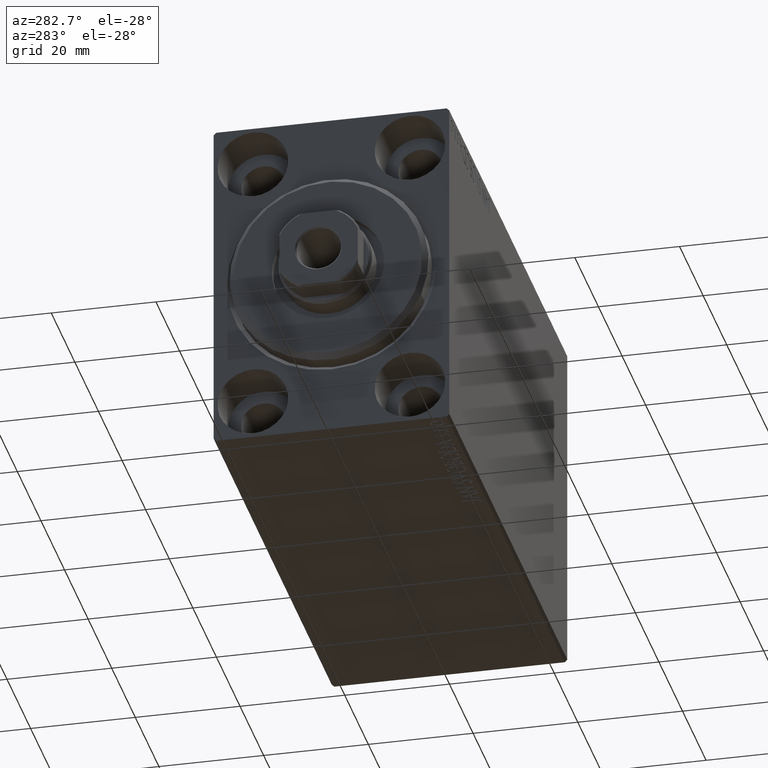
[diagram: clean part render]
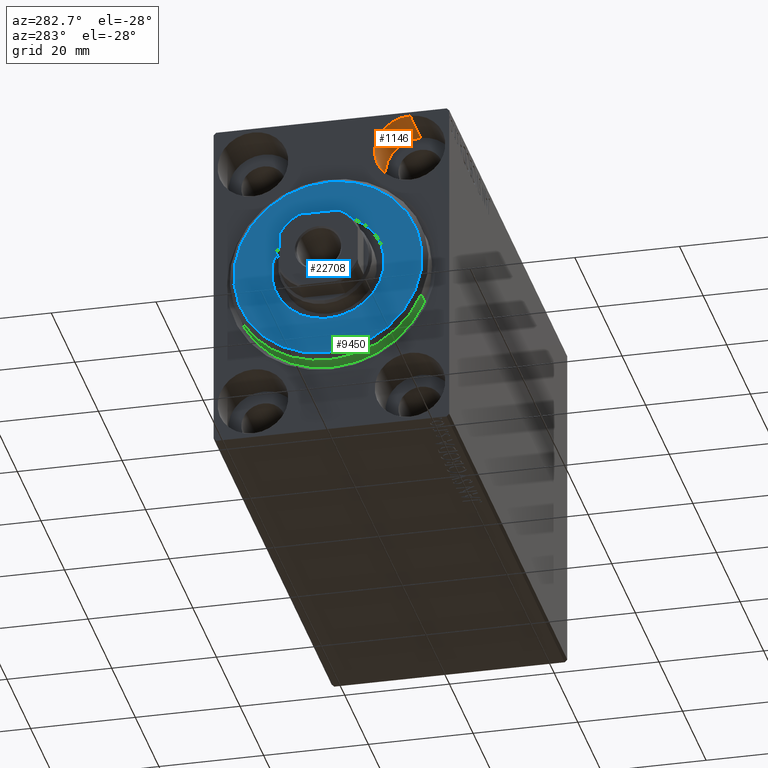
[diagram: same view with three faces highlighted in distinct colors, each labeled with its STEP entity id]
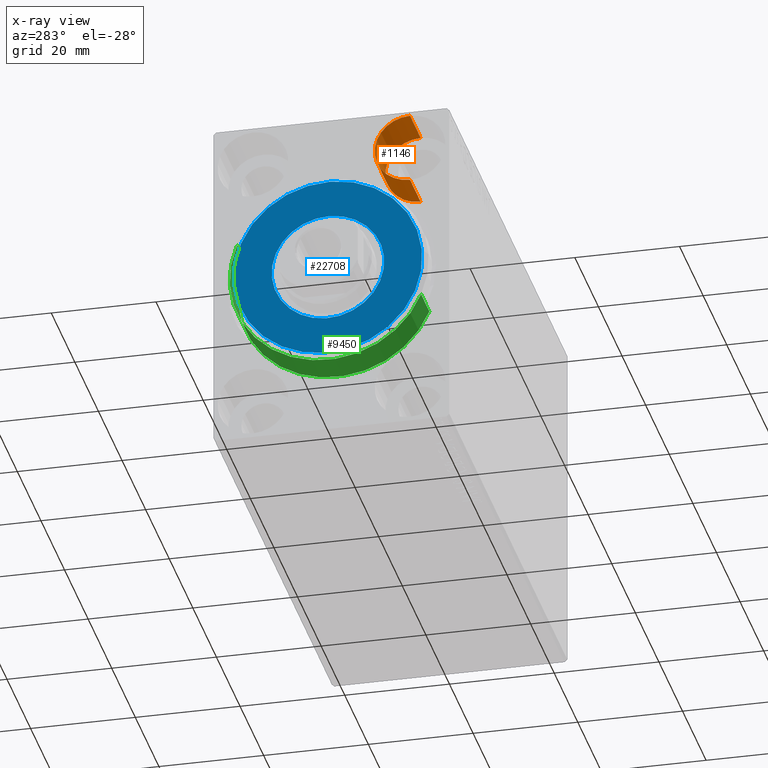
[diagram: x-ray of the same camera — body ghosted, the three highlighted faces saturated]
A machine part, auxiliary view with three faces highlighted in distinct colors.
The next image is the same camera in x-ray (body ghosted, the three faces saturated) — at least one of them is partly hidden behind the body in this view.
Their STEP definitions:

[orange] entity #1146 — the highlighted cylindrical surface (edge-blend (fillet) strip) has radius 6.75 mm, axis along (-1, -0, -0).
#38 = CARTESIAN_POINT ( 'NONE',  ( 9.000000000000000000, -14.99999999999999645, 25.00000000000000000 ) ) ;
#243 = CARTESIAN_POINT ( 'NONE',  ( 9.000000000000000000, -14.99999999999999645, 18.25000000000000355 ) ) ;
#1146 = ADVANCED_FACE ( 'NONE', ( #20602 ), #20383, .F. ) ;
#1150 = DIRECTION ( 'NONE',  ( -1.000000000000000000, 0.000000000000000000, 0.000000000000000000 ) ) ;
#2938 = VERTEX_POINT ( 'NONE', #243 ) ;
#3031 = CARTESIAN_POINT ( 'NONE',  ( 0.000000000000000000, -14.99999999999999645, 18.25000000000000355 ) ) ;
#5574 = EDGE_LOOP ( 'NONE', ( #6490, #9588, #26633, #31160 ) ) ;
#6264 = LINE ( 'NONE', #19780, #40324 ) ;
#6490 = ORIENTED_EDGE ( 'NONE', *, *, #9525, .F. ) ;
#8071 = CARTESIAN_POINT ( 'NONE',  ( 9.000000000000000000, -14.99999999999999645, 31.75000000000000000 ) ) ;
#9525 = EDGE_CURVE ( 'NONE', #2938, #22240, #32239, .T. ) ;
#9588 = ORIENTED_EDGE ( 'NONE', *, *, #37745, .F. ) ;
#10008 = DIRECTION ( 'NONE',  ( 0.000000000000000000, 0.000000000000000000, 1.000000000000000000 ) ) ;
#10410 = DIRECTION ( 'NONE',  ( 0.000000000000000000, 0.000000000000000000, 1.000000000000000000 ) ) ;
#11329 = DIRECTION ( 'NONE',  ( 0.000000000000000000, 0.000000000000000000, 1.000000000000000000 ) ) ;
#12023 = AXIS2_PLACEMENT_3D ( 'NONE', #31714, #1150, #11329 ) ;
#13935 = CARTESIAN_POINT ( 'NONE',  ( 0.000000000000000000, -14.99999999999999645, 31.75000000000000000 ) ) ;
#14742 = EDGE_CURVE ( 'NONE', #32577, #32926, #6264, .T. ) ;
#14897 = EDGE_CURVE ( 'NONE', #32926, #22240, #30404, .T. ) ;
#17493 = DIRECTION ( 'NONE',  ( -1.000000000000000000, -0.000000000000000000, -0.000000000000000000 ) ) ;
#19780 = CARTESIAN_POINT ( 'NONE',  ( 9.000000000000000000, -14.99999999999999645, 31.75000000000000000 ) ) ;
#20383 = CYLINDRICAL_SURFACE ( 'NONE', #33255, 6.749999999999999112 ) ;
#20602 = FACE_OUTER_BOUND ( 'NONE', #5574, .T. ) ;
#20883 = CIRCLE ( 'NONE', #22997, 6.749999999999999112 ) ;
#21453 = VECTOR ( 'NONE', #42205, 1000.000000000000000 ) ;
#22240 = VERTEX_POINT ( 'NONE', #3031 ) ;
#22997 = AXIS2_PLACEMENT_3D ( 'NONE', #38, #36163, #10008 ) ;
#25590 = CARTESIAN_POINT ( 'NONE',  ( 9.000000000000000000, -14.99999999999999645, 18.25000000000000355 ) ) ;
#26633 = ORIENTED_EDGE ( 'NONE', *, *, #14742, .T. ) ;
#30404 = CIRCLE ( 'NONE', #12023, 6.749999999999999112 ) ;
#31160 = ORIENTED_EDGE ( 'NONE', *, *, #14897, .T. ) ;
#31714 = CARTESIAN_POINT ( 'NONE',  ( 0.000000000000000000, -14.99999999999999645, 25.00000000000000000 ) ) ;
#32239 = LINE ( 'NONE', #25590, #21453 ) ;
#32577 = VERTEX_POINT ( 'NONE', #8071 ) ;
#32926 = VERTEX_POINT ( 'NONE', #13935 ) ;
#33255 = AXIS2_PLACEMENT_3D ( 'NONE', #33873, #17493, #10410 ) ;
#33873 = CARTESIAN_POINT ( 'NONE',  ( 9.000000000000000000, -14.99999999999999645, 25.00000000000000000 ) ) ;
#35746 = DIRECTION ( 'NONE',  ( -1.000000000000000000, -0.000000000000000000, -0.000000000000000000 ) ) ;
#36163 = DIRECTION ( 'NONE',  ( -1.000000000000000000, 0.000000000000000000, 0.000000000000000000 ) ) ;
#37745 = EDGE_CURVE ( 'NONE', #32577, #2938, #20883, .T. ) ;
#40324 = VECTOR ( 'NONE', #35746, 1000.000000000000000 ) ;
#42205 = DIRECTION ( 'NONE',  ( -1.000000000000000000, -0.000000000000000000, -0.000000000000000000 ) ) ;

[blue] entity #22708 — the highlighted planar face has unit normal (-1, 0, 0).
#736 = EDGE_CURVE ( 'NONE', #6227, #40377, #9203, .T. ) ;
#1198 = FACE_BOUND ( 'NONE', #35191, .T. ) ;
#1556 = DIRECTION ( 'NONE',  ( -1.000000000000000000, 0.000000000000000000, -0.000000000000000000 ) ) ;
#1854 = DIRECTION ( 'NONE',  ( 0.000000000000000000, 0.000000000000000000, -1.000000000000000000 ) ) ;
#2963 = DIRECTION ( 'NONE',  ( -1.000000000000000000, 0.000000000000000000, -0.000000000000000000 ) ) ;
#3017 = CIRCLE ( 'NONE', #19295, 17.99999999999999645 ) ;
#4490 = CARTESIAN_POINT ( 'NONE',  ( 3.000000000000000000, 0.000000000000000000, 10.75000000000000000 ) ) ;
#5183 = FACE_OUTER_BOUND ( 'NONE', #18964, .T. ) ;
#6227 = VERTEX_POINT ( 'NONE', #4490 ) ;
#6462 = AXIS2_PLACEMENT_3D ( 'NONE', #14917, #28223, #1854 ) ;
#7688 = ORIENTED_EDGE ( 'NONE', *, *, #8988, .T. ) ;
#7765 = DIRECTION ( 'NONE',  ( 0.000000000000000000, 0.000000000000000000, -1.000000000000000000 ) ) ;
#8988 = EDGE_CURVE ( 'NONE', #36066, #12269, #3017, .T. ) ;
#9203 = CIRCLE ( 'NONE', #40304, 10.75000000000000000 ) ;
#10039 = ORIENTED_EDGE ( 'NONE', *, *, #22077, .T. ) ;
#10126 = DIRECTION ( 'NONE',  ( 0.000000000000000000, 0.000000000000000000, -1.000000000000000000 ) ) ;
#10385 = EDGE_CURVE ( 'NONE', #40377, #6227, #16495, .T. ) ;
#11082 = CARTESIAN_POINT ( 'NONE',  ( 3.000000000000000000, 0.000000000000000000, 0.000000000000000000 ) ) ;
#11310 = CARTESIAN_POINT ( 'NONE',  ( 3.000000000000000000, 1.316495309083404223E-15, -10.75000000000000000 ) ) ;
#11389 = CIRCLE ( 'NONE', #21301, 17.99999999999999645 ) ;
#11831 = ORIENTED_EDGE ( 'NONE', *, *, #10385, .T. ) ;
#12269 = VERTEX_POINT ( 'NONE', #17834 ) ;
#14701 = PLANE ( 'NONE',  #6462 ) ;
#14917 = CARTESIAN_POINT ( 'NONE',  ( 3.000000000000000000, 0.000000000000000000, 0.000000000000000000 ) ) ;
#15061 = DIRECTION ( 'NONE',  ( 0.000000000000000000, 0.000000000000000000, -1.000000000000000000 ) ) ;
#16495 = CIRCLE ( 'NONE', #37622, 10.75000000000000000 ) ;
#17834 = CARTESIAN_POINT ( 'NONE',  ( 3.000000000000000000, 0.000000000000000000, 17.99999999999999645 ) ) ;
#18184 = CARTESIAN_POINT ( 'NONE',  ( 3.000000000000000000, 0.000000000000000000, 0.000000000000000000 ) ) ;
#18964 = EDGE_LOOP ( 'NONE', ( #10039, #7688 ) ) ;
#19295 = AXIS2_PLACEMENT_3D ( 'NONE', #11082, #38536, #7765 ) ;
#20729 = ORIENTED_EDGE ( 'NONE', *, *, #736, .T. ) ;
#21301 = AXIS2_PLACEMENT_3D ( 'NONE', #33166, #43794, #10126 ) ;
#22077 = EDGE_CURVE ( 'NONE', #12269, #36066, #11389, .T. ) ;
#22708 = ADVANCED_FACE ( 'NONE', ( #5183, #1198 ), #14701, .T. ) ;
#27336 = CARTESIAN_POINT ( 'NONE',  ( 3.000000000000000000, 0.000000000000000000, 0.000000000000000000 ) ) ;
#28223 = DIRECTION ( 'NONE',  ( 1.000000000000000000, -0.000000000000000000, 0.000000000000000000 ) ) ;
#33166 = CARTESIAN_POINT ( 'NONE',  ( 3.000000000000000000, 0.000000000000000000, 0.000000000000000000 ) ) ;
#33198 = CARTESIAN_POINT ( 'NONE',  ( 3.000000000000000000, 2.265596578422603002E-15, -17.99999999999999645 ) ) ;
#35191 = EDGE_LOOP ( 'NONE', ( #20729, #11831 ) ) ;
#36066 = VERTEX_POINT ( 'NONE', #33198 ) ;
#37622 = AXIS2_PLACEMENT_3D ( 'NONE', #27336, #2963, #41060 ) ;
#38536 = DIRECTION ( 'NONE',  ( 1.000000000000000000, -0.000000000000000000, 0.000000000000000000 ) ) ;
#40304 = AXIS2_PLACEMENT_3D ( 'NONE', #18184, #1556, #15061 ) ;
#40377 = VERTEX_POINT ( 'NONE', #11310 ) ;
#41060 = DIRECTION ( 'NONE',  ( 0.000000000000000000, 0.000000000000000000, -1.000000000000000000 ) ) ;
#43794 = DIRECTION ( 'NONE',  ( 1.000000000000000000, -0.000000000000000000, 0.000000000000000000 ) ) ;

[green] entity #9450 — the highlighted cylindrical surface (partial cylindrical patch) has radius 19 mm, axis along (1, 0, 0).
#111 = DIRECTION ( 'NONE',  ( -1.000000000000000000, -0.000000000000000000, -0.000000000000000000 ) ) ;
#1934 = CARTESIAN_POINT ( 'NONE',  ( -5.000000000000000000, 2.326828918379970970E-15, -19.00000000000000000 ) ) ;
#2171 = CIRCLE ( 'NONE', #15612, 19.00000000000000000 ) ;
#2337 = AXIS2_PLACEMENT_3D ( 'NONE', #17847, #14950, #37784 ) ;
#2692 = CARTESIAN_POINT ( 'NONE',  ( 1.999999999999992228, 0.000000000000000000, 19.00000000000000000 ) ) ;
#3064 = VECTOR ( 'NONE', #12247, 1000.000000000000000 ) ;
#3592 = EDGE_CURVE ( 'NONE', #40277, #18276, #2171, .T. ) ;
#4585 = CARTESIAN_POINT ( 'NONE',  ( -5.000000000000000000, 0.000000000000000000, 0.000000000000000000 ) ) ;
#5607 = LINE ( 'NONE', #36168, #3064 ) ;
#8241 = ORIENTED_EDGE ( 'NONE', *, *, #14399, .F. ) ;
#9450 = ADVANCED_FACE ( 'NONE', ( #27816 ), #41542, .T. ) ;
#10018 = CARTESIAN_POINT ( 'NONE',  ( -5.000000000000000000, 0.000000000000000000, 19.00000000000000000 ) ) ;
#11249 = ORIENTED_EDGE ( 'NONE', *, *, #14179, .F. ) ;
#12212 = DIRECTION ( 'NONE',  ( -1.000000000000000000, 0.000000000000000000, 0.000000000000000000 ) ) ;
#12247 = DIRECTION ( 'NONE',  ( -1.000000000000000000, -0.000000000000000000, -0.000000000000000000 ) ) ;
#14179 = EDGE_CURVE ( 'NONE', #21136, #36347, #26862, .T. ) ;
#14399 = EDGE_CURVE ( 'NONE', #40277, #21136, #20273, .T. ) ;
#14950 = DIRECTION ( 'NONE',  ( -1.000000000000000000, -0.000000000000000000, -0.000000000000000000 ) ) ;
#14993 = EDGE_LOOP ( 'NONE', ( #27519, #23814, #11249, #8241 ) ) ;
#15411 = DIRECTION ( 'NONE',  ( -1.000000000000000000, 0.000000000000000000, 0.000000000000000000 ) ) ;
#15612 = AXIS2_PLACEMENT_3D ( 'NONE', #42571, #12212, #22422 ) ;
#17847 = CARTESIAN_POINT ( 'NONE',  ( 3.000000000000000000, 0.000000000000000000, 0.000000000000000000 ) ) ;
#18276 = VERTEX_POINT ( 'NONE', #32780 ) ;
#20273 = LINE ( 'NONE', #30676, #43139 ) ;
#21136 = VERTEX_POINT ( 'NONE', #10018 ) ;
#22422 = DIRECTION ( 'NONE',  ( 0.000000000000000000, 0.000000000000000000, -1.000000000000000000 ) ) ;
#23814 = ORIENTED_EDGE ( 'NONE', *, *, #29095, .T. ) ;
#26862 = CIRCLE ( 'NONE', #31831, 19.00000000000000000 ) ;
#27519 = ORIENTED_EDGE ( 'NONE', *, *, #3592, .T. ) ;
#27816 = FACE_OUTER_BOUND ( 'NONE', #14993, .T. ) ;
#29095 = EDGE_CURVE ( 'NONE', #18276, #36347, #5607, .T. ) ;
#30676 = CARTESIAN_POINT ( 'NONE',  ( 3.000000000000000000, 0.000000000000000000, 19.00000000000000000 ) ) ;
#31831 = AXIS2_PLACEMENT_3D ( 'NONE', #4585, #15411, #39122 ) ;
#32780 = CARTESIAN_POINT ( 'NONE',  ( 1.999999999999992228, 2.326828918379970970E-15, -19.00000000000000000 ) ) ;
#36168 = CARTESIAN_POINT ( 'NONE',  ( 3.000000000000000000, 2.326828918379970970E-15, -19.00000000000000000 ) ) ;
#36347 = VERTEX_POINT ( 'NONE', #1934 ) ;
#37784 = DIRECTION ( 'NONE',  ( 0.000000000000000000, 0.000000000000000000, 1.000000000000000000 ) ) ;
#39122 = DIRECTION ( 'NONE',  ( 0.000000000000000000, 0.000000000000000000, 1.000000000000000000 ) ) ;
#40277 = VERTEX_POINT ( 'NONE', #2692 ) ;
#41542 = CYLINDRICAL_SURFACE ( 'NONE', #2337, 19.00000000000000000 ) ;
#42571 = CARTESIAN_POINT ( 'NONE',  ( 1.999999999999992228, 0.000000000000000000, 0.000000000000000000 ) ) ;
#43139 = VECTOR ( 'NONE', #111, 1000.000000000000000 ) ;